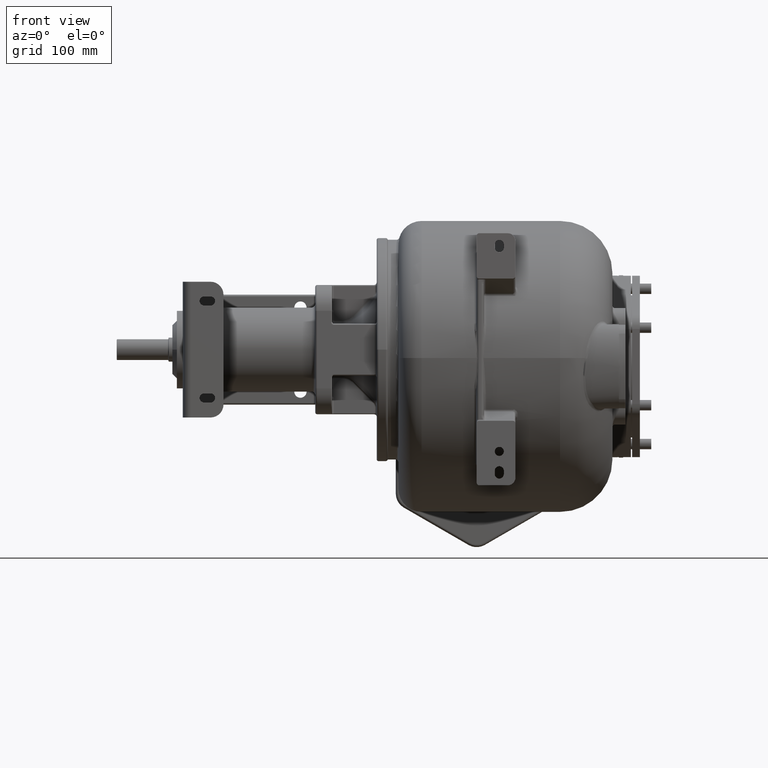
[diagram: clean part render]
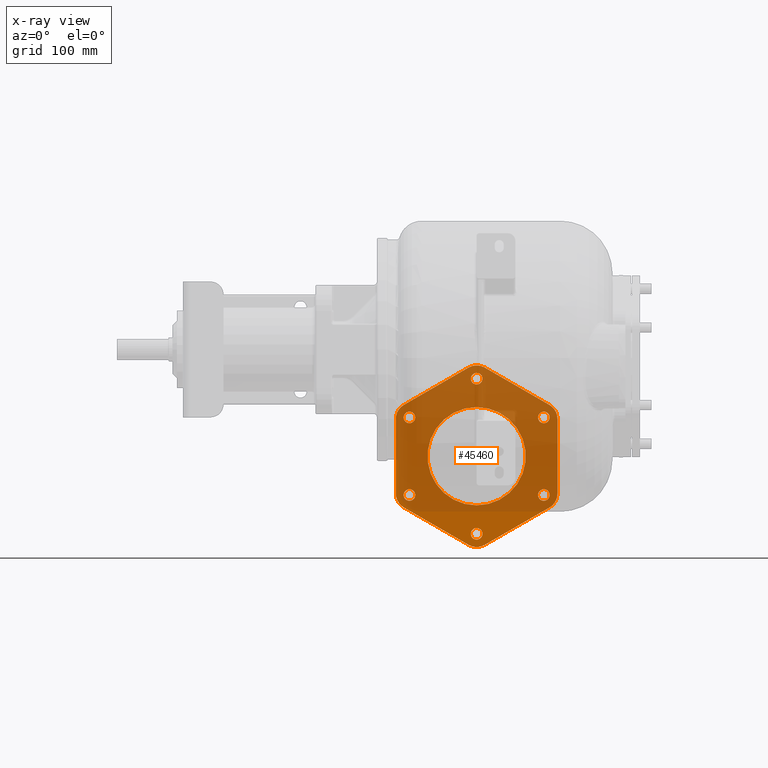
[diagram: x-ray — body ghosted, one internal face saturated and labeled with its STEP entity id]
A machine part, front view, then the same camera in x-ray: the body is ghosted and one INTERNAL B-rep face — a face not visible from any outside direction — is saturated and labeled: STEP entity #45460.
In plain terms, the highlighted planar face has unit normal (0, 1, 0).
Its self-contained STEP definition (entity closure, byte-faithful):
#44855=CARTESIAN_POINT('',(-1.35E2,5.52E2,-2.227350269190E2));
#44856=DIRECTION('',(0.E0,-1.E0,0.E0));
#44857=DIRECTION('',(-1.E0,0.E0,0.E0));
#44858=AXIS2_PLACEMENT_3D('',#44855,#44856,#44857);
#44860=DIRECTION('',(0.E0,0.E0,-1.E0));
#44861=VECTOR('',#44860,1.154700538379E2);
#44862=CARTESIAN_POINT('',(-1.6E2,5.52E2,-1.072649730810E2));
#44863=LINE('',#44862,#44861);
#44864=CARTESIAN_POINT('',(-1.35E2,5.52E2,-1.072649730810E2));
#44865=DIRECTION('',(0.E0,-1.E0,0.E0));
#44866=DIRECTION('',(-5.E-1,0.E0,8.660254037844E-1));
#44867=AXIS2_PLACEMENT_3D('',#44864,#44865,#44866);
#44869=DIRECTION('',(-8.660254037844E-1,0.E0,-5.E-1));
#44870=VECTOR('',#44869,1.154700538379E2);
#44871=CARTESIAN_POINT('',(-4.75E1,5.52E2,-2.787931106746E1));
#44872=LINE('',#44871,#44870);
#44873=CARTESIAN_POINT('',(-3.5E1,5.52E2,-4.952994616208E1));
#44874=DIRECTION('',(0.E0,-1.E0,0.E0));
#44875=DIRECTION('',(5.E-1,0.E0,8.660254037844E-1));
#44876=AXIS2_PLACEMENT_3D('',#44873,#44874,#44875);
#44878=DIRECTION('',(-8.660254037844E-1,0.E0,5.E-1));
#44879=VECTOR('',#44878,1.154700538379E2);
#44880=CARTESIAN_POINT('',(7.75E1,5.52E2,-8.561433798643E1));
#44881=LINE('',#44880,#44879);
#44882=CARTESIAN_POINT('',(6.5E1,5.52E2,-1.072649730810E2));
#44883=DIRECTION('',(0.E0,-1.E0,0.E0));
#44884=DIRECTION('',(1.E0,0.E0,0.E0));
#44885=AXIS2_PLACEMENT_3D('',#44882,#44883,#44884);
#44887=DIRECTION('',(0.E0,0.E0,1.E0));
#44888=VECTOR('',#44887,1.154700538379E2);
#44889=CARTESIAN_POINT('',(9.E1,5.52E2,-2.227350269190E2));
#44890=LINE('',#44889,#44888);
#44891=CARTESIAN_POINT('',(6.5E1,5.52E2,-2.227350269190E2));
#44892=DIRECTION('',(0.E0,-1.E0,0.E0));
#44893=DIRECTION('',(5.E-1,0.E0,-8.660254037844E-1));
#44894=AXIS2_PLACEMENT_3D('',#44891,#44892,#44893);
#44896=DIRECTION('',(8.660254037844E-1,0.E0,5.E-1));
#44897=VECTOR('',#44896,1.154700538379E2);
#44898=CARTESIAN_POINT('',(-2.25E1,5.52E2,-3.021206889325E2));
#44899=LINE('',#44898,#44897);
#44900=CARTESIAN_POINT('',(-3.5E1,5.52E2,-2.804700538379E2));
#44901=DIRECTION('',(0.E0,-1.E0,0.E0));
#44902=DIRECTION('',(-5.E-1,0.E0,-8.660254037844E-1));
#44903=AXIS2_PLACEMENT_3D('',#44900,#44901,#44902);
#44905=DIRECTION('',(8.660254037844E-1,0.E0,-5.E-1));
#44906=VECTOR('',#44905,1.154700538379E2);
#44907=CARTESIAN_POINT('',(-1.475E2,5.52E2,-2.443856620136E2));
#44908=LINE('',#44907,#44906);
#44909=CARTESIAN_POINT('',(-3.5E1,5.52E2,-1.65E2));
#44910=DIRECTION('',(0.E0,-1.E0,0.E0));
#44911=DIRECTION('',(0.E0,0.E0,1.E0));
#44912=AXIS2_PLACEMENT_3D('',#44909,#44910,#44911);
#44914=CARTESIAN_POINT('',(-3.5E1,5.52E2,-1.65E2));
#44915=DIRECTION('',(0.E0,-1.E0,0.E0));
#44916=DIRECTION('',(0.E0,0.E0,-1.E0));
#44917=AXIS2_PLACEMENT_3D('',#44914,#44915,#44916);
#44919=CARTESIAN_POINT('',(6.892304845413E1,5.52E2,-1.05E2));
#44920=DIRECTION('',(0.E0,1.E0,0.E0));
#44921=DIRECTION('',(0.E0,0.E0,-1.E0));
#44922=AXIS2_PLACEMENT_3D('',#44919,#44920,#44921);
#44924=CARTESIAN_POINT('',(6.892304845413E1,5.52E2,-1.05E2));
#44925=DIRECTION('',(0.E0,1.E0,0.E0));
#44926=DIRECTION('',(0.E0,0.E0,1.E0));
#44927=AXIS2_PLACEMENT_3D('',#44924,#44925,#44926);
#44929=CARTESIAN_POINT('',(-3.5E1,5.52E2,-4.5E1));
#44930=DIRECTION('',(0.E0,1.E0,0.E0));
#44931=DIRECTION('',(8.660254037844E-1,0.E0,-5.E-1));
#44932=AXIS2_PLACEMENT_3D('',#44929,#44930,#44931);
#44934=CARTESIAN_POINT('',(-3.5E1,5.52E2,-4.5E1));
#44935=DIRECTION('',(0.E0,1.E0,0.E0));
#44936=DIRECTION('',(-8.660254037844E-1,0.E0,5.E-1));
#44937=AXIS2_PLACEMENT_3D('',#44934,#44935,#44936);
#44939=CARTESIAN_POINT('',(-1.389230484541E2,5.52E2,-1.05E2));
#44940=DIRECTION('',(0.E0,1.E0,0.E0));
#44941=DIRECTION('',(8.660254037844E-1,0.E0,5.E-1));
#44942=AXIS2_PLACEMENT_3D('',#44939,#44940,#44941);
#44944=CARTESIAN_POINT('',(-1.389230484541E2,5.52E2,-1.05E2));
#44945=DIRECTION('',(0.E0,1.E0,0.E0));
#44946=DIRECTION('',(-8.660254037844E-1,0.E0,-5.E-1));
#44947=AXIS2_PLACEMENT_3D('',#44944,#44945,#44946);
#44949=CARTESIAN_POINT('',(-1.389230484541E2,5.52E2,-2.25E2));
#44950=DIRECTION('',(0.E0,1.E0,0.E0));
#44951=DIRECTION('',(0.E0,0.E0,1.E0));
#44952=AXIS2_PLACEMENT_3D('',#44949,#44950,#44951);
#44954=CARTESIAN_POINT('',(-1.389230484541E2,5.52E2,-2.25E2));
#44955=DIRECTION('',(0.E0,1.E0,0.E0));
#44956=DIRECTION('',(0.E0,0.E0,-1.E0));
#44957=AXIS2_PLACEMENT_3D('',#44954,#44955,#44956);
#44959=CARTESIAN_POINT('',(-3.5E1,5.52E2,-2.85E2));
#44960=DIRECTION('',(0.E0,1.E0,0.E0));
#44961=DIRECTION('',(-8.660254037844E-1,0.E0,5.E-1));
#44962=AXIS2_PLACEMENT_3D('',#44959,#44960,#44961);
#44964=CARTESIAN_POINT('',(-3.5E1,5.52E2,-2.85E2));
#44965=DIRECTION('',(0.E0,1.E0,0.E0));
#44966=DIRECTION('',(8.660254037844E-1,0.E0,-5.E-1));
#44967=AXIS2_PLACEMENT_3D('',#44964,#44965,#44966);
#44969=CARTESIAN_POINT('',(6.892304845413E1,5.52E2,-2.25E2));
#44970=DIRECTION('',(0.E0,1.E0,0.E0));
#44971=DIRECTION('',(-8.660254037844E-1,0.E0,-5.E-1));
#44972=AXIS2_PLACEMENT_3D('',#44969,#44970,#44971);
#44974=CARTESIAN_POINT('',(6.892304845413E1,5.52E2,-2.25E2));
#44975=DIRECTION('',(0.E0,1.E0,0.E0));
#44976=DIRECTION('',(8.660254037844E-1,0.E0,5.E-1));
#44977=AXIS2_PLACEMENT_3D('',#44974,#44975,#44976);
#45027=CARTESIAN_POINT('',(6.892304845413E1,5.52E2,-1.14E2));
#45029=VERTEX_POINT('',#45027);
#45031=CARTESIAN_POINT('',(6.892304845413E1,5.52E2,-9.6E1));
#45033=VERTEX_POINT('',#45031);
#45035=CARTESIAN_POINT('',(-2.720577136594E1,5.52E2,-4.95E1));
#45037=VERTEX_POINT('',#45035);
#45039=CARTESIAN_POINT('',(-4.279422863406E1,5.52E2,-4.05E1));
#45041=VERTEX_POINT('',#45039);
#45043=CARTESIAN_POINT('',(-1.311288198201E2,5.52E2,-1.005E2));
#45045=VERTEX_POINT('',#45043);
#45047=CARTESIAN_POINT('',(-1.467172770882E2,5.52E2,-1.095E2));
#45049=VERTEX_POINT('',#45047);
#45051=CARTESIAN_POINT('',(-1.389230484541E2,5.52E2,-2.16E2));
#45053=VERTEX_POINT('',#45051);
#45055=CARTESIAN_POINT('',(-1.389230484541E2,5.52E2,-2.34E2));
#45057=VERTEX_POINT('',#45055);
#45059=CARTESIAN_POINT('',(-4.279422863406E1,5.52E2,-2.805E2));
#45061=VERTEX_POINT('',#45059);
#45063=CARTESIAN_POINT('',(-2.720577136594E1,5.52E2,-2.895E2));
#45065=VERTEX_POINT('',#45063);
#45067=CARTESIAN_POINT('',(6.112881982007E1,5.52E2,-2.295E2));
#45069=VERTEX_POINT('',#45067);
#45071=CARTESIAN_POINT('',(7.671727708819E1,5.52E2,-2.205E2));
#45073=VERTEX_POINT('',#45071);
#45075=CARTESIAN_POINT('',(-3.5E1,5.52E2,-8.9E1));
#45076=CARTESIAN_POINT('',(-3.5E1,5.52E2,-2.41E2));
#45077=VERTEX_POINT('',#45075);
#45078=VERTEX_POINT('',#45076);
#45087=CARTESIAN_POINT('',(-1.6E2,5.52E2,-2.227350269190E2));
#45088=VERTEX_POINT('',#45087);
#45089=CARTESIAN_POINT('',(-1.475E2,5.52E2,-2.443856620136E2));
#45090=VERTEX_POINT('',#45089);
#45095=CARTESIAN_POINT('',(-4.75E1,5.52E2,-3.021206889325E2));
#45096=VERTEX_POINT('',#45095);
#45097=CARTESIAN_POINT('',(-2.25E1,5.52E2,-3.021206889325E2));
#45098=VERTEX_POINT('',#45097);
#45103=CARTESIAN_POINT('',(7.75E1,5.52E2,-2.443856620136E2));
#45104=VERTEX_POINT('',#45103);
#45105=CARTESIAN_POINT('',(9.E1,5.52E2,-2.227350269190E2));
#45106=VERTEX_POINT('',#45105);
#45111=CARTESIAN_POINT('',(9.E1,5.52E2,-1.072649730810E2));
#45112=VERTEX_POINT('',#45111);
#45113=CARTESIAN_POINT('',(7.75E1,5.52E2,-8.561433798643E1));
#45114=VERTEX_POINT('',#45113);
#45119=CARTESIAN_POINT('',(-2.25E1,5.52E2,-2.787931106746E1));
#45120=VERTEX_POINT('',#45119);
#45121=CARTESIAN_POINT('',(-4.75E1,5.52E2,-2.787931106746E1));
#45122=VERTEX_POINT('',#45121);
#45127=CARTESIAN_POINT('',(-1.475E2,5.52E2,-8.561433798643E1));
#45128=VERTEX_POINT('',#45127);
#45129=CARTESIAN_POINT('',(-1.6E2,5.52E2,-1.072649730810E2));
#45130=VERTEX_POINT('',#45129);
#45401=CARTESIAN_POINT('',(-3.5E1,5.52E2,-1.65E2));
#45402=DIRECTION('',(0.E0,1.E0,0.E0));
#45403=DIRECTION('',(0.E0,0.E0,1.E0));
#45404=AXIS2_PLACEMENT_3D('',#45401,#45402,#45403);
#45405=PLANE('',#45404);
#45406=ORIENTED_EDGE('',*,*,#45241,.F.);
#45407=ORIENTED_EDGE('',*,*,#45257,.F.);
#45408=ORIENTED_EDGE('',*,*,#45270,.F.);
#45409=ORIENTED_EDGE('',*,*,#45283,.F.);
#45410=ORIENTED_EDGE('',*,*,#45298,.F.);
#45411=ORIENTED_EDGE('',*,*,#45311,.F.);
#45412=ORIENTED_EDGE('',*,*,#45326,.F.);
#45413=ORIENTED_EDGE('',*,*,#45339,.F.);
#45414=ORIENTED_EDGE('',*,*,#45354,.F.);
#45415=ORIENTED_EDGE('',*,*,#45367,.F.);
#45416=ORIENTED_EDGE('',*,*,#45382,.F.);
#45417=ORIENTED_EDGE('',*,*,#45394,.F.);
#45418=EDGE_LOOP('',(#45406,#45407,#45408,#45409,#45410,#45411,#45412,#45413,
#45414,#45415,#45416,#45417));
#45419=FACE_OUTER_BOUND('',#45418,.F.);
#45421=ORIENTED_EDGE('',*,*,#45420,.T.);
#45423=ORIENTED_EDGE('',*,*,#45422,.T.);
#45424=EDGE_LOOP('',(#45421,#45423));
#45425=FACE_BOUND('',#45424,.F.);
#45427=ORIENTED_EDGE('',*,*,#45426,.F.);
#45429=ORIENTED_EDGE('',*,*,#45428,.F.);
#45430=EDGE_LOOP('',(#45427,#45429));
#45431=FACE_BOUND('',#45430,.F.);
#45433=ORIENTED_EDGE('',*,*,#45432,.F.);
#45435=ORIENTED_EDGE('',*,*,#45434,.F.);
#45436=EDGE_LOOP('',(#45433,#45435));
#45437=FACE_BOUND('',#45436,.F.);
#45439=ORIENTED_EDGE('',*,*,#45438,.F.);
#45441=ORIENTED_EDGE('',*,*,#45440,.F.);
#45442=EDGE_LOOP('',(#45439,#45441));
#45443=FACE_BOUND('',#45442,.F.);
#45445=ORIENTED_EDGE('',*,*,#45444,.F.);
#45447=ORIENTED_EDGE('',*,*,#45446,.F.);
#45448=EDGE_LOOP('',(#45445,#45447));
#45449=FACE_BOUND('',#45448,.F.);
#45450=ORIENTED_EDGE('',*,*,#45138,.F.);
#45451=ORIENTED_EDGE('',*,*,#45156,.F.);
#45452=EDGE_LOOP('',(#45450,#45451));
#45453=FACE_BOUND('',#45452,.F.);
#45455=ORIENTED_EDGE('',*,*,#45454,.F.);
#45457=ORIENTED_EDGE('',*,*,#45456,.F.);
#45458=EDGE_LOOP('',(#45455,#45457));
#45459=FACE_BOUND('',#45458,.F.);
#45460=ADVANCED_FACE('',(#45419,#45425,#45431,#45437,#45443,#45449,#45453,
#45459),#45405,.F.);
#44859=CIRCLE('',#44858,2.5E1);
#44868=CIRCLE('',#44867,2.5E1);
#44877=CIRCLE('',#44876,2.5E1);
#44886=CIRCLE('',#44885,2.5E1);
#44895=CIRCLE('',#44894,2.5E1);
#44904=CIRCLE('',#44903,2.5E1);
#44913=CIRCLE('',#44912,7.6E1);
#44918=CIRCLE('',#44917,7.6E1);
#44923=CIRCLE('',#44922,9.E0);
#44928=CIRCLE('',#44927,9.E0);
#44933=CIRCLE('',#44932,9.E0);
#44938=CIRCLE('',#44937,9.E0);
#44943=CIRCLE('',#44942,9.E0);
#44948=CIRCLE('',#44947,9.E0);
#44953=CIRCLE('',#44952,9.E0);
#44958=CIRCLE('',#44957,9.E0);
#44963=CIRCLE('',#44962,9.E0);
#44968=CIRCLE('',#44967,9.E0);
#44973=CIRCLE('',#44972,9.E0);
#44978=CIRCLE('',#44977,9.E0);
#45138=EDGE_CURVE('',#45061,#45065,#44963,.T.);
#45156=EDGE_CURVE('',#45065,#45061,#44968,.T.);
#45241=EDGE_CURVE('',#45088,#45090,#44859,.T.);
#45257=EDGE_CURVE('',#45130,#45088,#44863,.T.);
#45270=EDGE_CURVE('',#45128,#45130,#44868,.T.);
#45283=EDGE_CURVE('',#45122,#45128,#44872,.T.);
#45298=EDGE_CURVE('',#45120,#45122,#44877,.T.);
#45311=EDGE_CURVE('',#45114,#45120,#44881,.T.);
#45326=EDGE_CURVE('',#45112,#45114,#44886,.T.);
#45339=EDGE_CURVE('',#45106,#45112,#44890,.T.);
#45354=EDGE_CURVE('',#45104,#45106,#44895,.T.);
#45367=EDGE_CURVE('',#45098,#45104,#44899,.T.);
#45382=EDGE_CURVE('',#45096,#45098,#44904,.T.);
#45394=EDGE_CURVE('',#45090,#45096,#44908,.T.);
#45420=EDGE_CURVE('',#45077,#45078,#44913,.T.);
#45422=EDGE_CURVE('',#45078,#45077,#44918,.T.);
#45426=EDGE_CURVE('',#45029,#45033,#44923,.T.);
#45428=EDGE_CURVE('',#45033,#45029,#44928,.T.);
#45432=EDGE_CURVE('',#45037,#45041,#44933,.T.);
#45434=EDGE_CURVE('',#45041,#45037,#44938,.T.);
#45438=EDGE_CURVE('',#45045,#45049,#44943,.T.);
#45440=EDGE_CURVE('',#45049,#45045,#44948,.T.);
#45444=EDGE_CURVE('',#45053,#45057,#44953,.T.);
#45446=EDGE_CURVE('',#45057,#45053,#44958,.T.);
#45454=EDGE_CURVE('',#45069,#45073,#44973,.T.);
#45456=EDGE_CURVE('',#45073,#45069,#44978,.T.);